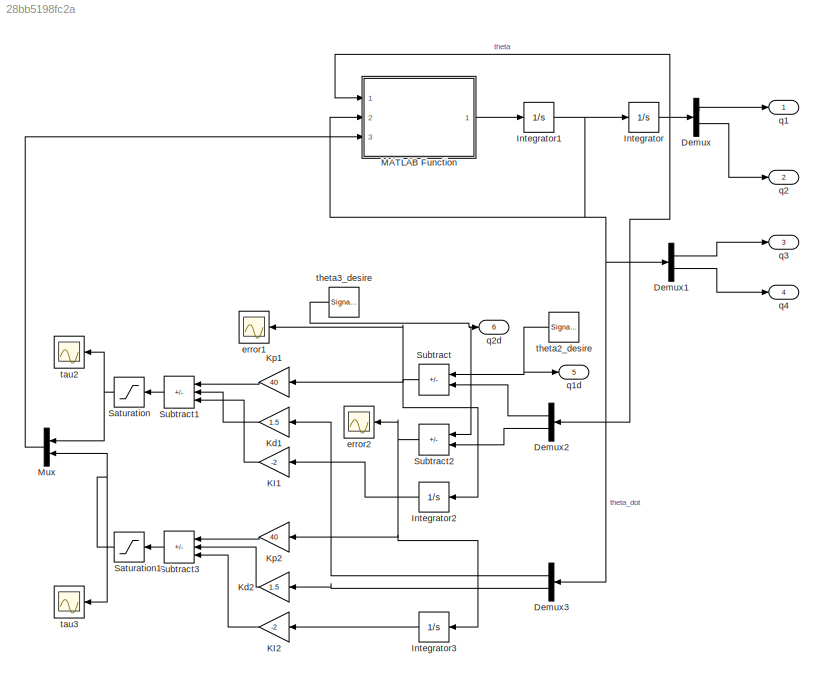
MODEL slx_28bb5198fc2a
KIND model
CONFIG AbsTol = auto
CONFIG EnableMultiTasking = off
CONFIG FixedStep = auto
CONFIG MaxStep = auto
CONFIG MinStep = auto
CONFIG RelTol = 1e-3
CONFIG SampleTimeConstraint = Unconstrained
CONFIG SolverName = VariableStepAuto
CONFIG StartTime = 0.0
CONFIG StopTime = 20.0
BLOCK [Demux] Demux
  Outputs = 2
  Ports = [1, 2]
BLOCK [Demux] Demux1
  Outputs = 2
  Ports = [1, 2]
BLOCK [Demux] Demux2
  NameLocation = top
  Outputs = 2
  Ports = [1, 2]
BLOCK [Demux] Demux3
  NameLocation = top
  Outputs = 2
  Ports = [1, 2]
BLOCK [Integrator] Integrator
  InitialCondition = [0;0]
  Ports = [1, 1]
BLOCK [Integrator] Integrator1
  InitialCondition = [0;0]
  Ports = [1, 1]
BLOCK [Integrator] Integrator2
  NameLocation = top
  Ports = [1, 1]
BLOCK [Integrator] Integrator3
  NameLocation = top
  Ports = [1, 1]
BLOCK [Gain] KI1
  Gain = -2
  NameLocation = top
BLOCK [Gain] KI2
  Gain = -2
  NameLocation = top
BLOCK [Gain] Kd1
  Gain = 1.5
  NameLocation = top
BLOCK [Gain] Kd2
  Gain = 1.5
  NameLocation = top
BLOCK [Gain] Kp1
  Gain = 40
  NameLocation = top
BLOCK [Gain] Kp2
  Gain = 40
  NameLocation = top
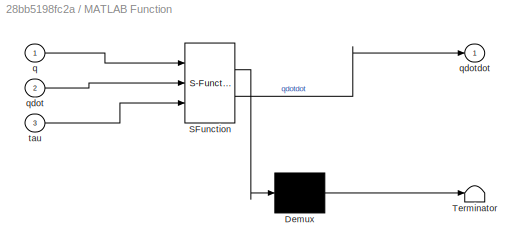
BLOCK [SubSystem] MATLAB Function
  ErrorFcn = Stateflow.Translate.translate
  PermitHierarchicalResolution = ExplicitOnly
  Ports = [3, 1]
  RequestExecContextInheritance = off
  SFBlockType = MATLAB Function
  TreatAsAtomicUnit = on
BLOCK [Demux] MATLAB Function/ Demux 
  Outputs = 1
  Ports = [1, 1]
BLOCK [S-Function] MATLAB Function/ SFunction 
  EnableBusSupport = on
  FunctionName = sf_sfun
  PortCounts = [3 2]
  Ports = [3, 2]
  SFcnIsStateOwnerBlock = off
  SFunctionDeploymentMode = off
  Tag = Stateflow S-Function 2
BLOCK [Terminator] MATLAB Function/ Terminator 
BLOCK [Inport] MATLAB Function/q
BLOCK [Inport] MATLAB Function/qdot
  Port = 2
BLOCK [Outport] MATLAB Function/qdotdot
BLOCK [Inport] MATLAB Function/tau
  Port = 3
BLOCK [Mux] Mux
  DisplayOption = bar
  Inputs = 2
  NameLocation = top
  Ports = [2, 1]
BLOCK [Saturate] Saturation
  LowerLimit = -5
  NameLocation = top
  UpperLimit = 5
BLOCK [Saturate] Saturation1
  LowerLimit = -5
  NameLocation = top
  UpperLimit = 5
BLOCK [Sum] Subtract
  IconShape = rectangular
  Inputs = +-
  NameLocation = top
  Ports = [2, 1]
BLOCK [Sum] Subtract1
  IconShape = rectangular
  Inputs = +-+
  NameLocation = top
  Ports = [3, 1]
BLOCK [Sum] Subtract2
  IconShape = rectangular
  Inputs = +-
  NameLocation = top
  Ports = [2, 1]
BLOCK [Sum] Subtract3
  IconShape = rectangular
  Inputs = +-+
  NameLocation = top
  Ports = [3, 1]
BLOCK [Scope] error1
  Floating = off
  NameLocation = top
  NumInputPorts = 1
  Ports = [1]
  ScopeSpecificationString = Simulink.scopes.TimeScopeBlockCfg('CurrentConfiguration', extmgr.ConfigurationSet(extmgr.Configuration('Core','General UI',true),extmgr.Configuration('Core','Source UI',true),extmgr.Configuration('Sources','WiredSimulink',true,'DataLoggingVariableName','ScopeData6'),extmgr.Configuration('Visuals','Time Domain',true,'SerializedDisplays',{struct('MinYLimReal','-4.70235','MaxYLimReal','4.6714','YLabe...<+1440ch>
BLOCK [Scope] error2
  Floating = off
  NameLocation = top
  NumInputPorts = 1
  Ports = [1]
  ScopeSpecificationString = Simulink.scopes.TimeScopeBlockCfg('CurrentConfiguration', extmgr.ConfigurationSet(extmgr.Configuration('Core','General UI',true),extmgr.Configuration('Core','Source UI',true),extmgr.Configuration('Sources','WiredSimulink',true,'DataLoggingVariableName','ScopeData7'),extmgr.Configuration('Visuals','Time Domain',true,'SerializedDisplays',{struct('MinYLimReal','-4.70235','MaxYLimReal','4.6714','YLabe...<+1441ch>
BLOCK [Outport] q1
BLOCK [Outport] q1d
  Port = 5
BLOCK [Outport] q2
  Port = 2
BLOCK [Outport] q2d
  Port = 6
BLOCK [Outport] q3
  Port = 3
BLOCK [Outport] q4
  Port = 4
BLOCK [Scope] tau2
  Floating = off
  NameLocation = top
  NumInputPorts = 1
  Ports = [1]
  ScopeSpecificationString = Simulink.scopes.TimeScopeBlockCfg('CurrentConfiguration', extmgr.ConfigurationSet(extmgr.Configuration('Core','General UI',true),extmgr.Configuration('Core','Source UI',true),extmgr.Configuration('Sources','WiredSimulink',true,'DataLoggingVariableName','ScopeData4'),extmgr.Configuration('Visuals','Time Domain',true,'SerializedDisplays',{struct('MinYLimReal','-4.70235','MaxYLimReal','4.6714','YLabe...<+1442ch>
BLOCK [Scope] tau3
  Floating = off
  NameLocation = top
  NumInputPorts = 1
  Ports = [1]
  ScopeSpecificationString = Simulink.scopes.TimeScopeBlockCfg('CurrentConfiguration', extmgr.ConfigurationSet(extmgr.Configuration('Core','General UI',true),extmgr.Configuration('Core','Source UI',true),extmgr.Configuration('Sources','WiredSimulink',true,'DataLoggingVariableName','ScopeData5'),extmgr.Configuration('Visuals','Time Domain',true,'SerializedDisplays',{struct('MinYLimReal','-3.39615','MaxYLimReal','0.71224','YLab...<+1394ch>
BLOCK [SignalGenerator] theta2_desire
  Amplitude = 0.25
  Frequency = 0.25
  NameLocation = top
  Ports = [0, 1]
  WaveForm = square
BLOCK [SignalGenerator] theta3_desire
  Amplitude = 0.25
  Frequency = 0.25
  NameLocation = top
  Ports = [0, 1]
  WaveForm = square
LINE Demux1:1 -> q3:1
LINE Demux1:2 -> q4:1
LINE Demux2:1 -> Subtract:2
LINE Demux2:2 -> Subtract2:2
LINE Demux3:1 -> Kd1:1
LINE Demux3:2 -> Kd2:1
LINE Demux:1 -> q1:1
LINE Demux:2 -> q2:1
NET Integrator1:1 -> Demux1:1, Demux3:1, Integrator:1, MATLAB Function:2
LINE Integrator2:1 -> KI1:1
LINE Integrator3:1 -> KI2:1
NET Integrator:1 -> Demux2:1, Demux:1, MATLAB Function:1
LINE KI1:1 -> Subtract1:3
LINE KI2:1 -> Subtract3:3
LINE Kd1:1 -> Subtract1:2
LINE Kd2:1 -> Subtract3:2
LINE Kp1:1 -> Subtract1:1
LINE Kp2:1 -> Subtract3:1
LINE MATLAB Function:1 -> Integrator1:1
LINE Mux:1 -> MATLAB Function:3
NET Saturation1:1 -> Mux:2, tau3:1
NET Saturation:1 -> Mux:1, tau2:1
LINE Subtract1:1 -> Saturation:1
NET Subtract2:1 -> Integrator3:1, Kp2:1, error2:1
LINE Subtract3:1 -> Saturation1:1
NET Subtract:1 -> Integrator2:1, Kp1:1, error1:1
NET theta2_desire:1 -> Subtract:1, q1d:1
NET theta3_desire:1 -> Subtract2:1, q2d:1
note: NET lines group one-source signal fan-out (src -> all destinations, sorted); 1:1 wires keep LINE
CHART MATLAB Function states=1 transitions=1
  STATE_LABEL 'eML_blk_kernel()'
  STATE_LABEL 'SCRIPT:\nfunction qdotdot = lab2_1(q,qdot,tau)\ng = 9.81;\n\ntheta2 = q(1);\ntheta3 = q(2);\n\ntheta2_dot = qdot(1);\ntheta3_dot = qdot(2);\n\np = [0.03; 0.0128; 0.0076; 0.0753; 0.0298];\n\np1 = p(1);\np2 = p(2);\np3 = p(3);\np4 = p(4);\np5 = p(5);\n\nM = [[p1                        -p3*sin(theta3 - theta2)];\n     [-p3*sin(theta3 - theta2)                        p2]];\nC = [[0                                 -p3*cos...<+218ch>'
CHART  states=0 transitions=0
